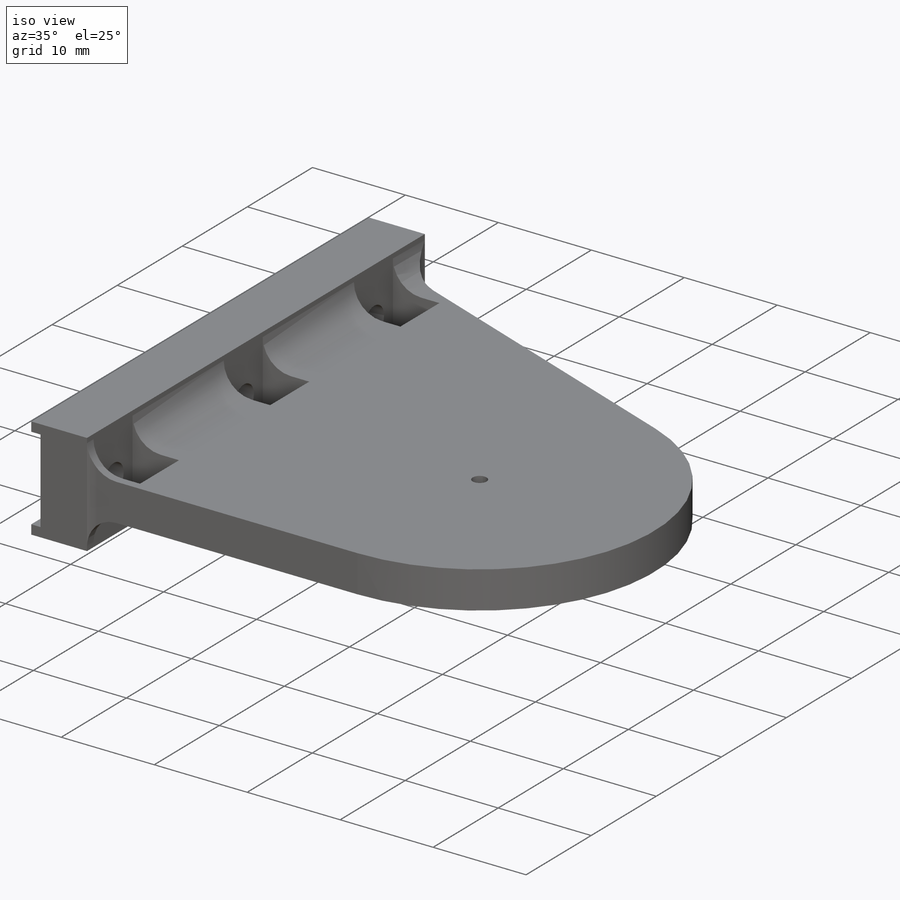
[diagram: iso view]
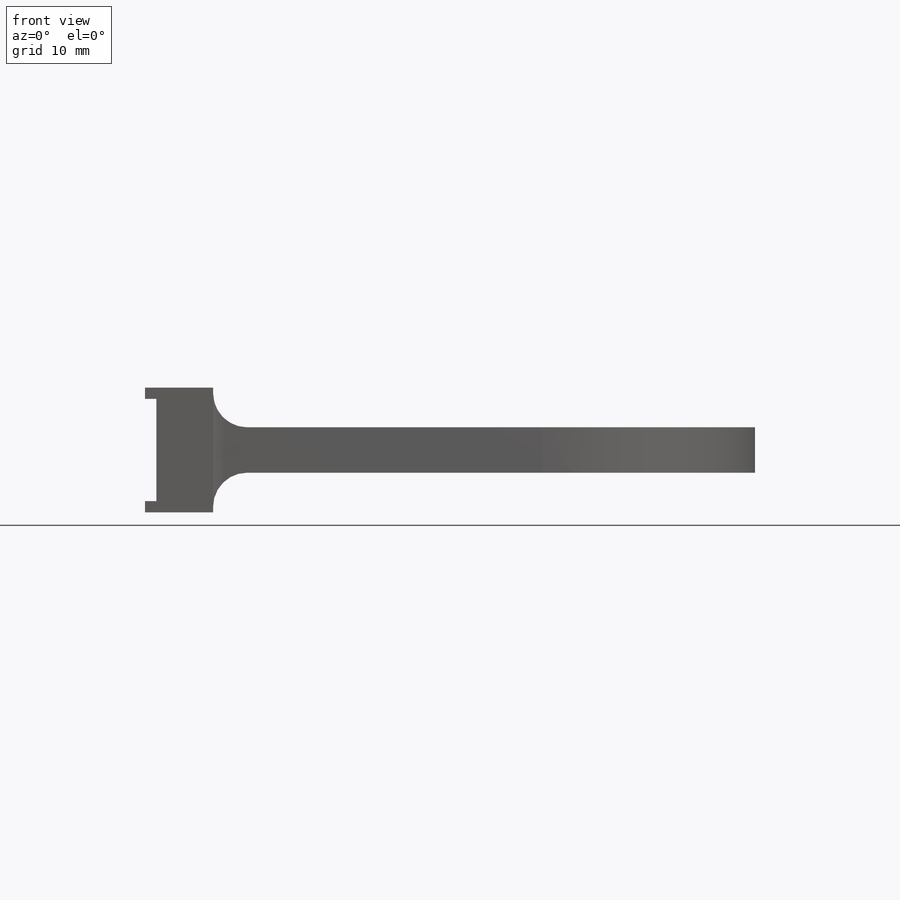
[diagram: front view]
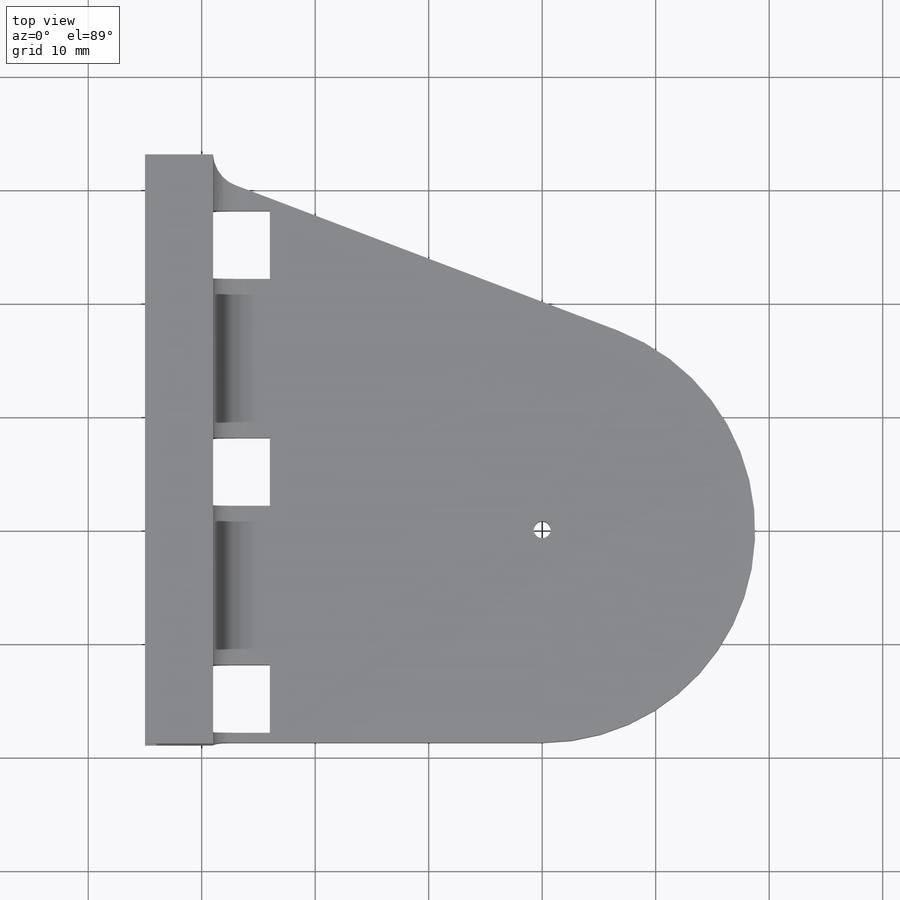
[diagram: top view]
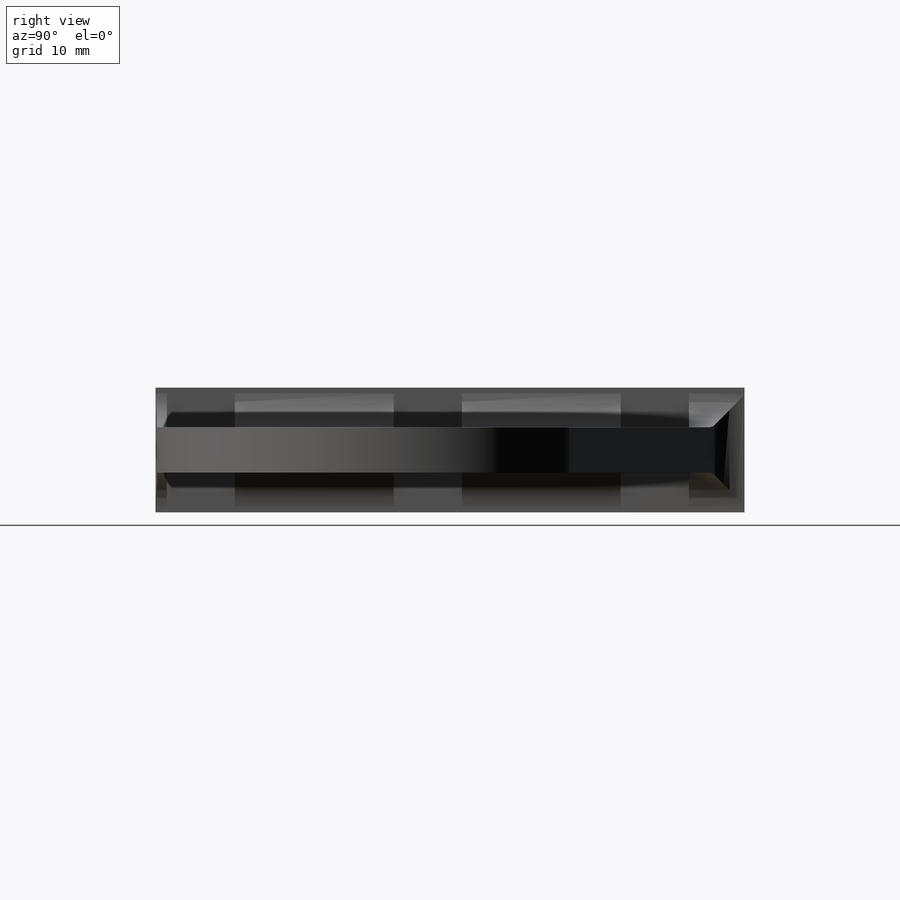
[diagram: right view]
SOLIDWORKS PART (.sldprt)
format: sldprt  version: not decoded by parser v0  size: 452,096 bytes
history: native  units: mm
features: sketch x19, plane x7, extrude x6, cut_extrude x6, hole x3, material x1, fillet x1 (+7 scaffold rows collapsed)
feature tree (50):
  scaffold x7  (default folders/planes/origin — collapsed)
  material  "材质 <未指定>"
  plane  "前视基准面"
  plane  "上视基准面"
  plane  "右视基准面"
  plane  "基准面4"
  sketch  "草图1"
  extrude  "凸台-拉伸1"  Depth=4mm
  sketch  "草图2"
  extrude  "凸台-拉伸2"  Depth=3.5mm
  sketch  "草图3"
  extrude  "凸台-拉伸3"  Depth=0.138368mm
  sketch  "草图4"
  extrude  "凸台-拉伸4"  Depth=12.922228mm
  sketch  "草图5"
  extrude  "凸台-拉伸5"  Depth=6mm
  sketch  "草图6"
  cut_extrude  "切除-拉伸1"  Depth=28.09941mm
  sketch  "草图7"
  cut_extrude  "切除-拉伸2"  Depth=0.90059mm
  plane  "基准面5"
  sketch  "草图8"
  cut_extrude  "切除-拉伸3"  Depth=6mm
  plane  "基准面6"  Offset=17.906331mm
  sketch  "草图9"
  cut_extrude  "切除-拉伸4"  Depth=6mm
  plane  "基准面7"  Offset=2.093669mm
  sketch  "草图10"
  cut_extrude  "切除-拉伸5"  Depth=6mm
  sketch  "草图11"
  extrude  "凸台-拉伸6"  Depth=3.5mm
  sketch  "草图12"
  cut_extrude  "切除-拉伸6"  Depth=51.906331mm
  hole  "Ø3.0 (3) 直径孔1"  [1 undecoded]
  sketch  "草图14"
  sketch  "草图13"  dims[hole-wizard template sketch: 59 standard entries collapsed; hole parameters kept: c18.通孔孔直径=3.0mm c18.通孔孔深度=6.0mm]
  hole  "Ø3.0 (3) 直径孔2"  [1 undecoded]
  sketch  "草图16"
  sketch  "草图15"  dims[hole-wizard template sketch: 59 standard entries collapsed; hole parameters kept: c18.通孔孔直径=3.0mm c18.通孔孔深度=5.0mm]
  hole  "Ø8.0 (8) 直径孔1"  [1 undecoded]
  sketch  "草图18"
  sketch  "草图17"  dims[hole-wizard template sketch: 59 standard entries collapsed; hole parameters kept: c18.通孔孔直径=1.5mm c18.通孔孔深度=~7.500025mm c18.D1=4.0mm]
  fillet  "圆角1"  Radius=3mm
  sketch  "草图21"
decode coverage: 16 of 35 modeling features carry decoded parameters
note: ~ marks probable driven/reference dimensions
note: 3 parameter values undecoded
summary: no parameter record found for 3 features
note: suppression state not decoded; provenance and decode notes live in map.json
